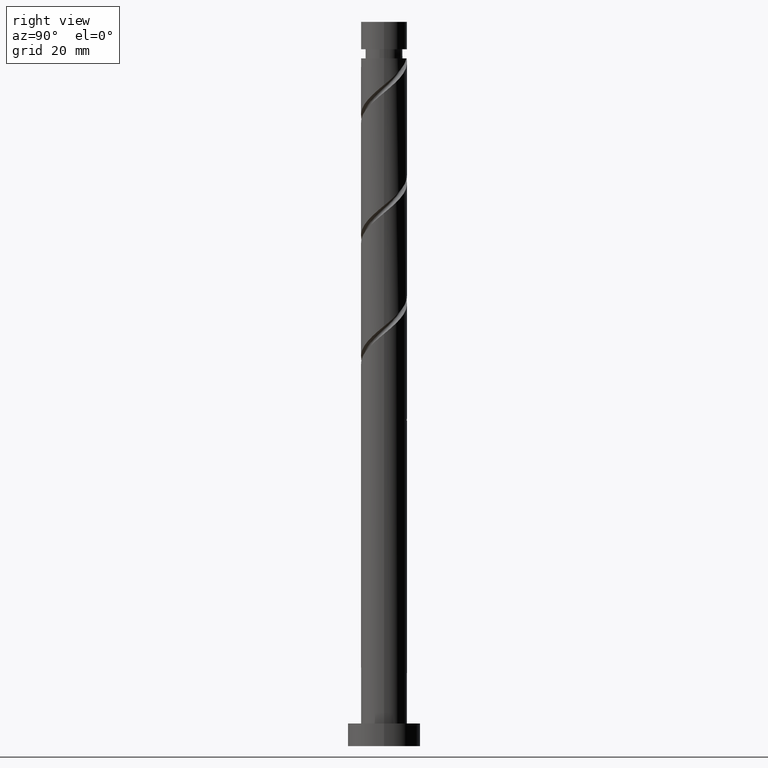
[diagram: clean part render]
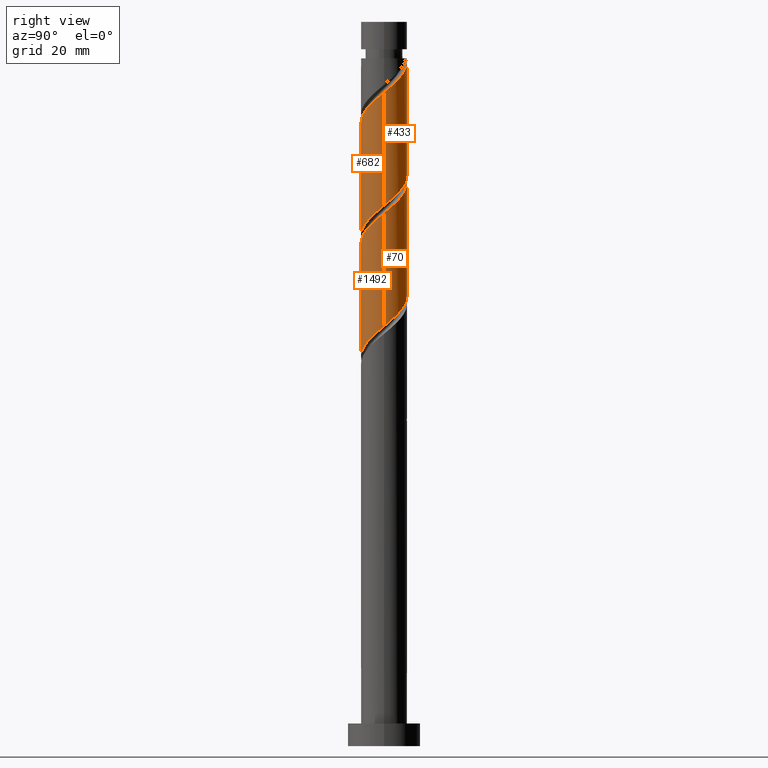
[diagram: same view with one multi-face feature highlighted, each face labeled with its STEP entity id]
A machine part, right view. The highlighted faces form ONE feature: a constant-radius fillet chain: 4 tangent blend faces with common blend radius 5.1 mm. The faces share edges in the B-rep.
Their STEP definitions:
[1] entity #1492 (Cylinder):
#2 = CARTESIAN_POINT ( 'NONE',  ( -1.164927662982270906, -5.019026539621376237, 110.1051444012704650 ) ) ;
#14 = CARTESIAN_POINT ( 'NONE',  ( -3.555900236163437977, -3.655895719307762359, 82.83241712854317029 ) ) ;
#15 = CARTESIAN_POINT ( 'NONE',  ( -5.100000000000008527, -3.873816562205578702E-15, 104.4072050734847323 ) ) ;
#44 = LINE ( 'NONE', #949, #942 ) ;
#133 = CARTESIAN_POINT ( 'NONE',  ( -1.014887185848754259, -4.997999999999999332, 85.25665955278559238 ) ) ;
#145 = EDGE_CURVE ( 'NONE', #1275, #1457, #539, .T. ) ;
#147 =( BOUNDED_CURVE ( )  B_SPLINE_CURVE ( 2, ( #15, #263, #377, #1274, #1142, #1162, #1655, #1017, #369, #497, #1152, #2, #1535, #510, #622, #1010, #361, #889, #1291, #1023, #881, #1299, #1539, #1402, #517 ),
 .UNSPECIFIED., .F., .T. ) 
 B_SPLINE_CURVE_WITH_KNOTS ( ( 3, 2, 2, 2, 2, 2, 2, 2, 2, 2, 2, 2, 3 ),
 ( 0.3045252162417514397, 0.3068181818181817677, 0.3181818181818182323, 0.3295454545454545858, 0.3409090909090909394, 0.3522727272727272929, 0.3636363636363636465, 0.3750000000000000000, 0.3863636363636363535, 0.3977272727272727071, 0.4090909090909090606, 0.4204545454545454142, 0.4295252162417513286 ),
 .UNSPECIFIED. ) 
 CURVE ( )  GEOMETRIC_REPRESENTATION_ITEM ( )  RATIONAL_B_SPLINE_CURVE ( ( 0.9061101570135587924, 0.9072237824201410117, 0.9090909090909183865, 0.8998376744372206248, 0.9090909090909183865, 0.8998376744372206248, 0.9090909090909183865, 0.8998376744372206248, 0.9090909090909183865, 0.8998376744372206248, 0.9090909090909183865, 0.8998376744372206248, 0.9090909090909183865, 0.8998376744372206248, 0.9090909090909183865, 0.8998376744372206248, 0.9090909090909183865, 0.8998376744372206248, 0.9090909090909183865, 0.8998376744372206248, 0.9090909090909183865, 0.8998376744372206248, 0.9090909090909183865, 0.9017048011079981107, 0.9061101570135587924 ) ) 
 REPRESENTATION_ITEM ( '' )  );
#244 = CARTESIAN_POINT ( 'NONE',  ( -4.081538685709033665, -3.144634449735859150, 82.22635652248253280 ) ) ;
#263 = CARTESIAN_POINT ( 'NONE',  ( -5.100000000000008527, -0.1467551852715037464, 104.5293030782029291 ) ) ;
#268 = CARTESIAN_POINT ( 'NONE',  ( 5.100000000000000533, -6.236994233358057448E-15, 92.77278069875313804 ) ) ;
#361 = CARTESIAN_POINT ( 'NONE',  ( 2.381876442926737170, -4.509619120350493837, 113.1354474315734535 ) ) ;
#368 = CARTESIAN_POINT ( 'NONE',  ( -5.100000000000000533, 5.190016784113299497E-15, 79.43944736541979523 ) ) ;
#369 = CARTESIAN_POINT ( 'NONE',  ( -3.112626605226008092, -4.039994506981326339, 108.2869625830886093 ) ) ;
#376 = CARTESIAN_POINT ( 'NONE',  ( 1.164927662982269574, -5.019026539621368244, 87.07484137096736276 ) ) ;
#377 = CARTESIAN_POINT ( 'NONE',  ( -5.091561072240604169, -0.2932675359534160919, 104.6505989467249833 ) ) ;
#382 = CARTESIAN_POINT ( 'NONE',  ( -4.802153594329291231, -1.867352329335635774, 81.01423531036135728 ) ) ;
#384 = EDGE_CURVE ( 'NONE', #1275, #1405, #147, .T. ) ;
#387 = CARTESIAN_POINT ( 'NONE',  ( -2.381876442926734949, -4.509619120350484067, 84.04453834066436002 ) ) ;
#397 = CARTESIAN_POINT ( 'NONE',  ( -5.100000000000001421, -0.5840975296641236492, 79.92540731839109469 ) ) ;
#406 = DIRECTION ( 'NONE',  ( -0.000000000000000000, -0.000000000000000000, -1.000000000000000000 ) ) ;
#436 = DIRECTION ( 'NONE',  ( -1.000000000000000000, 0.000000000000000000, 0.000000000000000000 ) ) ;
#497 = CARTESIAN_POINT ( 'NONE',  ( -2.531763087263172007, -4.487522650124088130, 108.8930231891492184 ) ) ;
#504 = CARTESIAN_POINT ( 'NONE',  ( 0.4343221952601943325, -5.081472643900030839, 86.46878076490679632 ) ) ;
#510 = CARTESIAN_POINT ( 'NONE',  ( 0.2962832724618764124, -5.143918748178701428, 111.3172656133916547 ) ) ;
#516 = CARTESIAN_POINT ( 'NONE',  ( 5.100000000000000533, -6.236994233358057448E-15, 92.77278069875313804 ) ) ;
#517 = CARTESIAN_POINT ( 'NONE',  ( 5.100000000000009415, 3.619550610246139694E-15, 117.7405384068180467 ) ) ;
#534 = FACE_OUTER_BOUND ( 'NONE', #1335, .T. ) ;
#539 = LINE ( 'NONE', #558, #1350 ) ;
#558 = CARTESIAN_POINT ( 'NONE',  ( -5.100000000000001421, 0.000000000000000000, 160.0000000000000000 ) ) ;
#622 = CARTESIAN_POINT ( 'NONE',  ( 1.014887185848753814, -4.998000000000006438, 111.9233262194522354 ) ) ;
#632 = CARTESIAN_POINT ( 'NONE',  ( -4.967940086286691148, -1.153070379060094242, 80.40817470430073399 ) ) ;
#643 = CARTESIAN_POINT ( 'NONE',  ( 5.100000000000009415, 3.619550610246139694E-15, 117.7405384068180467 ) ) ;
#665 = DIRECTION ( 'NONE',  ( -0.000000000000000000, -0.000000000000000000, -1.000000000000000000 ) ) ;
#756 = CARTESIAN_POINT ( 'NONE',  ( -4.441846140019165112, -2.505993389535748683, 81.62029591642196635 ) ) ;
#762 = CARTESIAN_POINT ( 'NONE',  ( -1.733491099235630495, -4.852081251821307006, 84.65059894672499752 ) ) ;
#764 = ORIENTED_EDGE ( 'NONE', *, *, #1216, .F. ) ;
#768 = CARTESIAN_POINT ( 'NONE',  ( -0.2962832724618781888, -5.143918748178693434, 85.86272015884617304 ) ) ;
#807 = CARTESIAN_POINT ( 'NONE',  ( 0.000000000000000000, 0.000000000000000000, 160.0000000000000000 ) ) ;
#880 = CARTESIAN_POINT ( 'NONE',  ( 1.848345375122716794, -4.753274594872724634, 87.68090197702798605 ) ) ;
#881 = CARTESIAN_POINT ( 'NONE',  ( 4.441846140019168665, -2.505993389535753124, 115.5596898558158898 ) ) ;
#889 = CARTESIAN_POINT ( 'NONE',  ( 3.030261786617845399, -4.167156988879670010, 113.7415080376340626 ) ) ;
#900 = CARTESIAN_POINT ( 'NONE',  ( -5.100000000000000533, 5.190016784113299497E-15, 79.43944736541979523 ) ) ;
#906 = CARTESIAN_POINT ( 'NONE',  ( 5.091561072240597063, -0.2932675359534175907, 92.52938682551285865 ) ) ;
#942 = VECTOR ( 'NONE', #665, 1000.000000000000000 ) ;
#949 = CARTESIAN_POINT ( 'NONE',  ( 5.100000000000001421, 6.245698675651502811E-16, 160.0000000000000000 ) ) ;
#1009 = CARTESIAN_POINT ( 'NONE',  ( -3.030261786617840514, -4.167156988879664681, 83.43847773460376516 ) ) ;
#1010 = CARTESIAN_POINT ( 'NONE',  ( 1.733491099235631161, -4.852081251821315000, 112.5293868255128586 ) ) ;
#1014 =( BOUNDED_CURVE ( )  B_SPLINE_CURVE ( 2, ( #268, #1022, #906, #1534, #1285, #1016, #1290, #1401, #1548, #1141, #880, #376, #504, #768, #133, #762, #387, #1009, #14, #244, #756, #382, #632, #397, #900 ),
 .UNSPECIFIED., .F., .T. ) 
 B_SPLINE_CURVE_WITH_KNOTS ( ( 3, 2, 2, 2, 2, 2, 2, 2, 2, 2, 2, 2, 3 ),
 ( 0.8045252162417513286, 0.8068181818181817677, 0.8181818181818182323, 0.8295454545454545858, 0.8409090909090909394, 0.8522727272727272929, 0.8636363636363636465, 0.8750000000000000000, 0.8863636363636363535, 0.8977272727272727071, 0.9090909090909090606, 0.9204545454545454142, 0.9295252162417513286 ),
 .UNSPECIFIED. ) 
 CURVE ( )  GEOMETRIC_REPRESENTATION_ITEM ( )  RATIONAL_B_SPLINE_CURVE ( ( 0.9061101570135526861, 0.9072237824201347944, 0.9090909090909122803, 0.8998376744372147407, 0.9090909090909122803, 0.8998376744372147407, 0.9090909090909122803, 0.8998376744372147407, 0.9090909090909122803, 0.8998376744372147407, 0.9090909090909122803, 0.8998376744372147407, 0.9090909090909122803, 0.8998376744372147407, 0.9090909090909122803, 0.8998376744372147407, 0.9090909090909122803, 0.8998376744372147407, 0.9090909090909122803, 0.8998376744372147407, 0.9090909090909122803, 0.8998376744372147407, 0.9090909090909122803, 0.9017048011079922265, 0.9061101570135526861 ) ) 
 REPRESENTATION_ITEM ( '' )  );
#1016 = CARTESIAN_POINT ( 'NONE',  ( 4.555992555365309116, -2.406369817974963077, 90.71120500733105985 ) ) ;
#1017 = CARTESIAN_POINT ( 'NONE',  ( -3.693490123188846397, -3.592466363838566323, 107.6809019770279860 ) ) ;
#1022 = CARTESIAN_POINT ( 'NONE',  ( 5.100000000000000533, -0.1467551852714985838, 92.65068269403492707 ) ) ;
#1023 = CARTESIAN_POINT ( 'NONE',  ( 4.081538685709038106, -3.144634449735867143, 114.9536292497552665 ) ) ;
#1062 = DIRECTION ( 'NONE',  ( -0.000000000000000000, -0.000000000000000000, -1.000000000000000000 ) ) ;
#1141 = CARTESIAN_POINT ( 'NONE',  ( 2.531763087263166234, -4.487522650124082801, 88.28696258308862355 ) ) ;
#1142 = CARTESIAN_POINT ( 'NONE',  ( -4.802694060801214526, -1.715846659333175817, 105.8627201588461730 ) ) ;
#1152 = CARTESIAN_POINT ( 'NONE',  ( -1.848345375122721679, -4.753274594872729963, 109.4990837952098275 ) ) ;
#1156 = CARTESIAN_POINT ( 'NONE',  ( -5.100000000000008527, -3.873816562205578702E-15, 104.4072050734847181 ) ) ;
#1162 = CARTESIAN_POINT ( 'NONE',  ( -4.555992555365317109, -2.406369817974965297, 106.4687807649067821 ) ) ;
#1216 = EDGE_CURVE ( 'NONE', #1410, #1457, #1014, .T. ) ;
#1274 = CARTESIAN_POINT ( 'NONE',  ( -5.049395566237111943, -1.025323500691386780, 105.2566595527856066 ) ) ;
#1275 = VERTEX_POINT ( 'NONE', #1156 ) ;
#1285 = CARTESIAN_POINT ( 'NONE',  ( 4.802694060801208309, -1.715846659333175150, 91.31726561339164050 ) ) ;
#1290 = CARTESIAN_POINT ( 'NONE',  ( 4.124741339277075980, -2.999418090906762036, 90.10514440127042235 ) ) ;
#1291 = CARTESIAN_POINT ( 'NONE',  ( 3.555900236163441086, -3.655895719307769021, 114.3475686436946432 ) ) ;
#1299 = CARTESIAN_POINT ( 'NONE',  ( 4.802153594329301001, -1.867352329335637995, 116.1657504618764847 ) ) ;
#1323 = CYLINDRICAL_SURFACE ( 'NONE', #1623, 5.100000000000001421 ) ;
#1335 = EDGE_LOOP ( 'NONE', ( #1524, #1503, #1597, #764 ) ) ;
#1350 = VECTOR ( 'NONE', #1062, 1000.000000000000000 ) ;
#1401 = CARTESIAN_POINT ( 'NONE',  ( 3.693490123188841956, -3.592466363838561882, 89.49908379520984170 ) ) ;
#1402 = CARTESIAN_POINT ( 'NONE',  ( 5.100000000000010303, -0.5840975296641256476, 117.2545784538467331 ) ) ;
#1405 = VERTEX_POINT ( 'NONE', #643 ) ;
#1410 = VERTEX_POINT ( 'NONE', #516 ) ;
#1457 = VERTEX_POINT ( 'NONE', #368 ) ;
#1492 = ADVANCED_FACE ( 'NONE', ( #534 ), #1323, .T. ) ;
#1503 = ORIENTED_EDGE ( 'NONE', *, *, #384, .F. ) ;
#1517 = EDGE_CURVE ( 'NONE', #1405, #1410, #44, .T. ) ;
#1524 = ORIENTED_EDGE ( 'NONE', *, *, #1517, .F. ) ;
#1534 = CARTESIAN_POINT ( 'NONE',  ( 5.049395566237103949, -1.025323500691387002, 91.92332621945226379 ) ) ;
#1535 = CARTESIAN_POINT ( 'NONE',  ( -0.4343221952601974412, -5.081472643900038832, 110.7112050073310456 ) ) ;
#1539 = CARTESIAN_POINT ( 'NONE',  ( 4.967940086286699142, -1.153070379060096906, 116.7718110679370938 ) ) ;
#1548 = CARTESIAN_POINT ( 'NONE',  ( 3.112626605226002319, -4.039994506981322786, 88.89302318914923262 ) ) ;
#1597 = ORIENTED_EDGE ( 'NONE', *, *, #145, .T. ) ;
#1623 = AXIS2_PLACEMENT_3D ( 'NONE', #807, #406, #436 ) ;
#1655 = CARTESIAN_POINT ( 'NONE',  ( -4.124741339277082197, -2.999418090906765588, 107.0748413709674054 ) ) ;
[2] entity #70 (Cylinder):
#39 = CARTESIAN_POINT ( 'NONE',  ( 0.000000000000000000, 0.000000000000000000, 160.0000000000000000 ) ) ;
#44 = LINE ( 'NONE', #949, #942 ) ;
#49 = CYLINDRICAL_SURFACE ( 'NONE', #117, 5.100000000000001421 ) ;
#70 = ADVANCED_FACE ( 'NONE', ( #1200 ), #49, .T. ) ;
#81 = ORIENTED_EDGE ( 'NONE', *, *, #393, .F. ) ;
#99 = CARTESIAN_POINT ( 'NONE',  ( 5.091561072240605057, 0.2932675359534154813, 117.9839322800582977 ) ) ;
#117 = AXIS2_PLACEMENT_3D ( 'NONE', #39, #936, #662 ) ;
#149 = CARTESIAN_POINT ( 'NONE',  ( -1.848345375122716794, 4.753274594872724634, 101.0142353103613431 ) ) ;
#176 = CARTESIAN_POINT ( 'NONE',  ( -4.124741339277075092, 2.999418090906762480, 103.4384777346037225 ) ) ;
#212 = CARTESIAN_POINT ( 'NONE',  ( -2.381876442926737614, 4.509619120350492061, 126.4687807649067821 ) ) ;
#245 = LINE ( 'NONE', #757, #1254 ) ;
#249 = VERTEX_POINT ( 'NONE', #1224 ) ;
#272 = ORIENTED_EDGE ( 'NONE', *, *, #864, .F. ) ;
#288 = CARTESIAN_POINT ( 'NONE',  ( -0.4343221952601959979, 5.081472643900030839, 99.80211409824012492 ) ) ;
#300 = CARTESIAN_POINT ( 'NONE',  ( 2.381876442926734949, 4.509619120350484067, 97.37787167399770283 ) ) ;
#331 = CARTESIAN_POINT ( 'NONE',  ( -0.2962832724618756353, 5.143918748178701428, 124.6505989467249691 ) ) ;
#332 = EDGE_CURVE ( 'NONE', #1405, #249, #775, .T. ) ;
#341 = CARTESIAN_POINT ( 'NONE',  ( -4.802153594329298336, 1.867352329335639771, 129.4990837952097991 ) ) ;
#351 = CARTESIAN_POINT ( 'NONE',  ( -5.100000000000011191, 0.5840975296641244263, 130.5879117871800759 ) ) ;
#371 =( BOUNDED_CURVE ( )  B_SPLINE_CURVE ( 2, ( #1134, #894, #1643, #1451, #1306, #1072, #176, #1460, #542, #1433, #149, #670, #288, #1194, #1585, #1046, #300, #533, #526, #1176, #914, #1442, #1554, #785, #421 ),
 .UNSPECIFIED., .F., .T. ) 
 B_SPLINE_CURVE_WITH_KNOTS ( ( 3, 2, 2, 2, 2, 2, 2, 2, 2, 2, 2, 2, 3 ),
 ( 0.6795252162417513286, 0.6818181818181817677, 0.6931818181818182323, 0.7045454545454545858, 0.7159090909090909394, 0.7272727272727272929, 0.7386363636363636465, 0.7500000000000000000, 0.7613636363636363535, 0.7727272727272727071, 0.7840909090909090606, 0.7954545454545454142, 0.8045252162417513286 ),
 .UNSPECIFIED. ) 
 CURVE ( )  GEOMETRIC_REPRESENTATION_ITEM ( )  RATIONAL_B_SPLINE_CURVE ( ( 0.9061101570135526861, 0.9072237824201347944, 0.9090909090909122803, 0.8998376744372147407, 0.9090909090909122803, 0.8998376744372147407, 0.9090909090909122803, 0.8998376744372147407, 0.9090909090909122803, 0.8998376744372147407, 0.9090909090909122803, 0.8998376744372147407, 0.9090909090909122803, 0.8998376744372147407, 0.9090909090909122803, 0.8998376744372147407, 0.9090909090909122803, 0.8998376744372147407, 0.9090909090909122803, 0.8998376744372147407, 0.9090909090909122803, 0.8998376744372147407, 0.9090909090909122803, 0.9017048011079922265, 0.9061101570135526861 ) ) 
 REPRESENTATION_ITEM ( '' )  );
#393 = EDGE_CURVE ( 'NONE', #249, #519, #245, .T. ) ;
#410 = ORIENTED_EDGE ( 'NONE', *, *, #332, .F. ) ;
#421 = CARTESIAN_POINT ( 'NONE',  ( 5.100000000000000533, -6.236994233358057448E-15, 92.77278069875313804 ) ) ;
#447 = CARTESIAN_POINT ( 'NONE',  ( 1.848345375122719902, 4.753274594872729963, 122.8324171285431419 ) ) ;
#460 = CARTESIAN_POINT ( 'NONE',  ( 5.100000000000009415, 3.619550610246139694E-15, 117.7405384068180467 ) ) ;
#470 = CARTESIAN_POINT ( 'NONE',  ( -4.081538685709038994, 3.144634449735867143, 128.2869625830886378 ) ) ;
#516 = CARTESIAN_POINT ( 'NONE',  ( 5.100000000000000533, -6.236994233358057448E-15, 92.77278069875313804 ) ) ;
#519 = VERTEX_POINT ( 'NONE', #797 ) ;
#526 = CARTESIAN_POINT ( 'NONE',  ( 3.555900236163436201, 3.655895719307762359, 96.16575046187647047 ) ) ;
#533 = CARTESIAN_POINT ( 'NONE',  ( 3.030261786617840958, 4.167156988879663793, 96.77181106793710796 ) ) ;
#542 = CARTESIAN_POINT ( 'NONE',  ( -3.112626605226002763, 4.039994506981321898, 102.2263565224825470 ) ) ;
#568 = CARTESIAN_POINT ( 'NONE',  ( 3.112626605226007648, 4.039994506981327227, 121.6202959164219379 ) ) ;
#607 = CARTESIAN_POINT ( 'NONE',  ( 3.693490123188849505, 3.592466363838564547, 121.0142353103613573 ) ) ;
#643 = CARTESIAN_POINT ( 'NONE',  ( 5.100000000000009415, 3.619550610246139694E-15, 117.7405384068180467 ) ) ;
#662 = DIRECTION ( 'NONE',  ( -1.000000000000000000, 0.000000000000000000, 0.000000000000000000 ) ) ;
#665 = DIRECTION ( 'NONE',  ( -0.000000000000000000, -0.000000000000000000, -1.000000000000000000 ) ) ;
#670 = CARTESIAN_POINT ( 'NONE',  ( -1.164927662982268908, 5.019026539621368244, 100.4081747043007482 ) ) ;
#701 = EDGE_LOOP ( 'NONE', ( #410, #1282, #272, #81 ) ) ;
#721 = CARTESIAN_POINT ( 'NONE',  ( -4.441846140019169553, 2.505993389535752680, 128.8930231891492326 ) ) ;
#757 = CARTESIAN_POINT ( 'NONE',  ( -5.100000000000001421, 0.000000000000000000, 160.0000000000000000 ) ) ;
#775 =( BOUNDED_CURVE ( )  B_SPLINE_CURVE ( 2, ( #460, #1105, #99, #1355, #984, #1502, #970, #607, #568, #1128, #447, #1479, #1637, #331, #851, #1367, #212, #1137, #829, #470, #721, #341, #1388, #351, #1265 ),
 .UNSPECIFIED., .F., .T. ) 
 B_SPLINE_CURVE_WITH_KNOTS ( ( 3, 2, 2, 2, 2, 2, 2, 2, 2, 2, 2, 2, 3 ),
 ( 0.4295252162417513286, 0.4318181818181817677, 0.4431818181818182323, 0.4545454545454545858, 0.4659090909090909394, 0.4772727272727272929, 0.4886363636363636465, 0.5000000000000000000, 0.5113636363636363535, 0.5227272727272727071, 0.5340909090909091717, 0.5454545454545454142, 0.5545252162417514397 ),
 .UNSPECIFIED. ) 
 CURVE ( )  GEOMETRIC_REPRESENTATION_ITEM ( )  RATIONAL_B_SPLINE_CURVE ( ( 0.9061101570135587924, 0.9072237824201409007, 0.9090909090909183865, 0.8998376744372206248, 0.9090909090909183865, 0.8998376744372206248, 0.9090909090909183865, 0.8998376744372206248, 0.9090909090909183865, 0.8998376744372206248, 0.9090909090909183865, 0.8998376744372206248, 0.9090909090909183865, 0.8998376744372206248, 0.9090909090909183865, 0.8998376744372206248, 0.9090909090909183865, 0.8998376744372206248, 0.9090909090909183865, 0.8998376744372206248, 0.9090909090909183865, 0.8998376744372206248, 0.9090909090909183865, 0.9017048011079979997, 0.9061101570135587924 ) ) 
 REPRESENTATION_ITEM ( '' )  );
#785 = CARTESIAN_POINT ( 'NONE',  ( 5.100000000000001421, 0.5840975296641215397, 93.25874065172443750 ) ) ;
#797 = CARTESIAN_POINT ( 'NONE',  ( -5.100000000000000533, 5.190016784113299497E-15, 106.1061140320864808 ) ) ;
#829 = CARTESIAN_POINT ( 'NONE',  ( -3.555900236163441086, 3.655895719307769021, 127.6809019770280287 ) ) ;
#851 = CARTESIAN_POINT ( 'NONE',  ( -1.014887185848752926, 4.998000000000006438, 125.2566595527855924 ) ) ;
#864 = EDGE_CURVE ( 'NONE', #519, #1410, #371, .T. ) ;
#894 = CARTESIAN_POINT ( 'NONE',  ( -5.100000000000000533, 0.1467551852714976679, 105.9840160273682841 ) ) ;
#896 = DIRECTION ( 'NONE',  ( -0.000000000000000000, -0.000000000000000000, -1.000000000000000000 ) ) ;
#914 = CARTESIAN_POINT ( 'NONE',  ( 4.441846140019163336, 2.505993389535748683, 94.95362924975525232 ) ) ;
#936 = DIRECTION ( 'NONE',  ( -0.000000000000000000, -0.000000000000000000, -1.000000000000000000 ) ) ;
#942 = VECTOR ( 'NONE', #665, 1000.000000000000000 ) ;
#949 = CARTESIAN_POINT ( 'NONE',  ( 5.100000000000001421, 6.245698675651502811E-16, 160.0000000000000000 ) ) ;
#970 = CARTESIAN_POINT ( 'NONE',  ( 4.124741339277083085, 2.999418090906763812, 120.4081747043007056 ) ) ;
#984 = CARTESIAN_POINT ( 'NONE',  ( 4.802694060801214526, 1.715846659333175150, 119.1960534921795016 ) ) ;
#1046 = CARTESIAN_POINT ( 'NONE',  ( 1.733491099235631161, 4.852081251821307006, 97.98393228005831190 ) ) ;
#1072 = CARTESIAN_POINT ( 'NONE',  ( -4.555992555365309116, 2.406369817974963077, 104.0445383406643458 ) ) ;
#1105 = CARTESIAN_POINT ( 'NONE',  ( 5.100000000000008527, 0.1467551852714962246, 117.8626364115362435 ) ) ;
#1128 = CARTESIAN_POINT ( 'NONE',  ( 2.531763087263169343, 4.487522650124088130, 122.2263565224825470 ) ) ;
#1134 = CARTESIAN_POINT ( 'NONE',  ( -5.100000000000000533, 5.190016784113299497E-15, 106.1061140320864808 ) ) ;
#1137 = CARTESIAN_POINT ( 'NONE',  ( -3.030261786617844511, 4.167156988879670898, 127.0748413709673912 ) ) ;
#1176 = CARTESIAN_POINT ( 'NONE',  ( 4.081538685709032777, 3.144634449735860926, 95.55968985581587560 ) ) ;
#1194 = CARTESIAN_POINT ( 'NONE',  ( 0.2962832724618768565, 5.143918748178693434, 99.19605349217950163 ) ) ;
#1200 = FACE_OUTER_BOUND ( 'NONE', #701, .T. ) ;
#1224 = CARTESIAN_POINT ( 'NONE',  ( -5.100000000000008527, 3.185802809844742417E-15, 131.0738717401513611 ) ) ;
#1254 = VECTOR ( 'NONE', #896, 1000.000000000000000 ) ;
#1265 = CARTESIAN_POINT ( 'NONE',  ( -5.100000000000008527, 3.185802809844742417E-15, 131.0738717401513611 ) ) ;
#1282 = ORIENTED_EDGE ( 'NONE', *, *, #1517, .T. ) ;
#1306 = CARTESIAN_POINT ( 'NONE',  ( -4.802694060801208309, 1.715846659333174706, 104.6505989467249691 ) ) ;
#1355 = CARTESIAN_POINT ( 'NONE',  ( 5.049395566237111943, 1.025323500691386114, 118.5899928861189352 ) ) ;
#1367 = CARTESIAN_POINT ( 'NONE',  ( -1.733491099235631827, 4.852081251821315000, 125.8627201588462015 ) ) ;
#1388 = CARTESIAN_POINT ( 'NONE',  ( -4.967940086286698254, 1.153070379060097350, 130.1051444012704223 ) ) ;
#1405 = VERTEX_POINT ( 'NONE', #643 ) ;
#1410 = VERTEX_POINT ( 'NONE', #516 ) ;
#1433 = CARTESIAN_POINT ( 'NONE',  ( -2.531763087263166678, 4.487522650124081913, 101.6202959164219806 ) ) ;
#1442 = CARTESIAN_POINT ( 'NONE',  ( 4.802153594329293007, 1.867352329335633110, 94.34756864369465745 ) ) ;
#1451 = CARTESIAN_POINT ( 'NONE',  ( -5.049395566237103949, 1.025323500691386336, 105.2566595527856208 ) ) ;
#1460 = CARTESIAN_POINT ( 'NONE',  ( -3.693490123188840624, 3.592466363838562327, 102.8324171285431561 ) ) ;
#1479 = CARTESIAN_POINT ( 'NONE',  ( 1.164927662982272016, 5.019026539621375349, 123.4384777346037652 ) ) ;
#1502 = CARTESIAN_POINT ( 'NONE',  ( 4.555992555365317109, 2.406369817974964853, 119.8021140982401249 ) ) ;
#1517 = EDGE_CURVE ( 'NONE', #1405, #1410, #44, .T. ) ;
#1554 = CARTESIAN_POINT ( 'NONE',  ( 4.967940086286692036, 1.153070379060092687, 93.74150803763406259 ) ) ;
#1585 = CARTESIAN_POINT ( 'NONE',  ( 1.014887185848754703, 4.997999999999999332, 98.58999288611893519 ) ) ;
#1637 = CARTESIAN_POINT ( 'NONE',  ( 0.4343221952601978297, 5.081472643900038832, 124.0445383406643600 ) ) ;
#1643 = CARTESIAN_POINT ( 'NONE',  ( -5.091561072240597063, 0.2932675359534169801, 105.8627201588462015 ) ) ;
[3] entity #682 (Cylinder):
#4 = CARTESIAN_POINT ( 'NONE',  ( -5.100000000000008527, -0.1467551852714980565, 131.1959697448695579 ) ) ;
#6 = CARTESIAN_POINT ( 'NONE',  ( -4.967940086286691148, -1.153070379060094242, 107.0748413709674338 ) ) ;
#13 = CARTESIAN_POINT ( 'NONE',  ( 4.802694060801208309, -1.715846659333175150, 117.9839322800583261 ) ) ;
#27 = EDGE_CURVE ( 'NONE', #249, #780, #1272, .T. ) ;
#111 = CARTESIAN_POINT ( 'NONE',  ( -4.081538685709033665, -3.144634449735859150, 108.8930231891492042 ) ) ;
#113 = CARTESIAN_POINT ( 'NONE',  ( -1.164927662982270906, -5.019026539621376237, 136.7718110679371080 ) ) ;
#127 = CARTESIAN_POINT ( 'NONE',  ( 4.555992555365309116, -2.406369817974963077, 117.3778716739977028 ) ) ;
#146 = ORIENTED_EDGE ( 'NONE', *, *, #393, .T. ) ;
#168 = CARTESIAN_POINT ( 'NONE',  ( 0.2962832724618764124, -5.143918748178701428, 137.9839322800583261 ) ) ;
#213 = EDGE_LOOP ( 'NONE', ( #759, #1649, #146, #1659 ) ) ;
#243 = CARTESIAN_POINT ( 'NONE',  ( 5.099999999999999645, -6.236994233358057448E-15, 119.4394473654198094 ) ) ;
#245 = LINE ( 'NONE', #757, #1254 ) ;
#249 = VERTEX_POINT ( 'NONE', #1224 ) ;
#293 = CARTESIAN_POINT ( 'NONE',  ( 2.381876442926737170, -4.509619120350493837, 139.8021140982401107 ) ) ;
#298 = CARTESIAN_POINT ( 'NONE',  ( 5.100000000000012079, -0.5840975296641169878, 143.9212451205134471 ) ) ;
#314 = DIRECTION ( 'NONE',  ( -0.000000000000000000, -0.000000000000000000, -1.000000000000000000 ) ) ;
#367 = CARTESIAN_POINT ( 'NONE',  ( 5.091561072240597063, -0.2932675359534175907, 119.1960534921795016 ) ) ;
#381 = CARTESIAN_POINT ( 'NONE',  ( -5.100000000000000533, 5.190016784113299497E-15, 106.1061140320864808 ) ) ;
#385 = CARTESIAN_POINT ( 'NONE',  ( -4.124741339277082197, -2.999418090906765588, 133.7415080376340768 ) ) ;
#390 = CARTESIAN_POINT ( 'NONE',  ( -2.531763087263172007, -4.487522650124088130, 135.5596898558158898 ) ) ;
#393 = EDGE_CURVE ( 'NONE', #249, #519, #245, .T. ) ;
#400 = CARTESIAN_POINT ( 'NONE',  ( -3.112626605226008092, -4.039994506981326339, 134.9536292497552949 ) ) ;
#427 = CARTESIAN_POINT ( 'NONE',  ( 4.081538685709038106, -3.144634449735867143, 141.6202959164219521 ) ) ;
#503 = CARTESIAN_POINT ( 'NONE',  ( -3.030261786617840514, -4.167156988879664681, 110.1051444012704508 ) ) ;
#508 = CARTESIAN_POINT ( 'NONE',  ( -5.100000000000001421, -0.5840975296641236492, 106.5920739850577803 ) ) ;
#519 = VERTEX_POINT ( 'NONE', #797 ) ;
#546 = CARTESIAN_POINT ( 'NONE',  ( 4.441846140019168665, -2.505993389535753124, 142.2263565224825470 ) ) ;
#548 = CARTESIAN_POINT ( 'NONE',  ( 5.100000000000000533, -6.236994233358057448E-15, 119.4394473654197952 ) ) ;
#565 = FACE_OUTER_BOUND ( 'NONE', #213, .T. ) ;
#631 = CARTESIAN_POINT ( 'NONE',  ( 1.848345375122716794, -4.753274594872724634, 114.3475686436946575 ) ) ;
#635 = CARTESIAN_POINT ( 'NONE',  ( -5.100000000000008527, 3.185802809844742417E-15, 131.0738717401513611 ) ) ;
#636 = CARTESIAN_POINT ( 'NONE',  ( -0.2962832724618781888, -5.143918748178693434, 112.5293868255128586 ) ) ;
#641 = CARTESIAN_POINT ( 'NONE',  ( 5.100000000000000533, -0.1467551852715056893, 119.3173493607015985 ) ) ;
#669 = CARTESIAN_POINT ( 'NONE',  ( 1.014887185848753814, -4.998000000000006438, 138.5899928861188926 ) ) ;
#676 = CARTESIAN_POINT ( 'NONE',  ( 3.030261786617845399, -4.167156988879670010, 140.4081747043007624 ) ) ;
#682 = ADVANCED_FACE ( 'NONE', ( #565 ), #743, .T. ) ;
#743 = CYLINDRICAL_SURFACE ( 'NONE', #1541, 5.100000000000001421 ) ;
#750 = CARTESIAN_POINT ( 'NONE',  ( 2.531763087263166234, -4.487522650124082801, 114.9536292497552665 ) ) ;
#757 = CARTESIAN_POINT ( 'NONE',  ( -5.100000000000001421, 0.000000000000000000, 160.0000000000000000 ) ) ;
#759 = ORIENTED_EDGE ( 'NONE', *, *, #1612, .F. ) ;
#767 = CARTESIAN_POINT ( 'NONE',  ( 3.693490123188841956, -3.592466363838561882, 116.1657504618764847 ) ) ;
#780 = VERTEX_POINT ( 'NONE', #1364 ) ;
#796 = DIRECTION ( 'NONE',  ( -0.000000000000000000, -0.000000000000000000, -1.000000000000000000 ) ) ;
#797 = CARTESIAN_POINT ( 'NONE',  ( -5.100000000000000533, 5.190016784113299497E-15, 106.1061140320864808 ) ) ;
#802 = CARTESIAN_POINT ( 'NONE',  ( 4.802153594329301001, -1.867352329335637995, 142.8324171285431987 ) ) ;
#819 = CARTESIAN_POINT ( 'NONE',  ( 3.555900236163441086, -3.655895719307769021, 141.0142353103612720 ) ) ;
#834 = DIRECTION ( 'NONE',  ( -1.000000000000000000, 0.000000000000000000, 0.000000000000000000 ) ) ;
#838 = EDGE_CURVE ( 'NONE', #903, #519, #1180, .T. ) ;
#896 = DIRECTION ( 'NONE',  ( -0.000000000000000000, -0.000000000000000000, -1.000000000000000000 ) ) ;
#897 = CARTESIAN_POINT ( 'NONE',  ( -3.693490123188846397, -3.592466363838566323, 134.3475686436946717 ) ) ;
#903 = VERTEX_POINT ( 'NONE', #548 ) ;
#909 = CARTESIAN_POINT ( 'NONE',  ( -1.848345375122721679, -4.753274594872729963, 136.1657504618764563 ) ) ;
#929 = CARTESIAN_POINT ( 'NONE',  ( 5.100000000000009415, 3.619550610246139694E-15, 144.4072050734847039 ) ) ;
#933 = LINE ( 'NONE', #1187, #1570 ) ;
#1025 = CARTESIAN_POINT ( 'NONE',  ( -5.091561072240604169, -0.2932675359534160919, 131.3172656133916405 ) ) ;
#1030 = CARTESIAN_POINT ( 'NONE',  ( 1.164927662982269574, -5.019026539621368244, 113.7415080376340626 ) ) ;
#1041 = CARTESIAN_POINT ( 'NONE',  ( -5.049395566237111943, -1.025323500691386780, 131.9233262194522354 ) ) ;
#1145 = CARTESIAN_POINT ( 'NONE',  ( -4.802694060801214526, -1.715846659333175817, 132.5293868255128302 ) ) ;
#1150 = CARTESIAN_POINT ( 'NONE',  ( -1.733491099235630495, -4.852081251821307006, 111.3172656133916547 ) ) ;
#1155 = CARTESIAN_POINT ( 'NONE',  ( -4.802153594329291231, -1.867352329335635774, 107.6809019770280003 ) ) ;
#1180 =( BOUNDED_CURVE ( )  B_SPLINE_CURVE ( 2, ( #243, #641, #367, #1284, #13, #127, #1394, #767, #1289, #750, #631, #1030, #1296, #636, #1421, #1150, #1663, #503, #1271, #111, #1547, #1155, #6, #508, #381 ),
 .UNSPECIFIED., .F., .T. ) 
 B_SPLINE_CURVE_WITH_KNOTS ( ( 3, 2, 2, 2, 2, 2, 2, 2, 2, 2, 2, 2, 3 ),
 ( 0.5545252162417514397, 0.5568181818181817677, 0.5681818181818182323, 0.5795454545454545858, 0.5909090909090909394, 0.6022727272727272929, 0.6136363636363636465, 0.6250000000000000000, 0.6363636363636363535, 0.6477272727272727071, 0.6590909090909090606, 0.6704545454545454142, 0.6795252162417513286 ),
 .UNSPECIFIED. ) 
 CURVE ( )  GEOMETRIC_REPRESENTATION_ITEM ( )  RATIONAL_B_SPLINE_CURVE ( ( 0.9061101570135527972, 0.9072237824201349055, 0.9090909090909122803, 0.8998376744372147407, 0.9090909090909122803, 0.8998376744372147407, 0.9090909090909122803, 0.8998376744372147407, 0.9090909090909122803, 0.8998376744372147407, 0.9090909090909122803, 0.8998376744372147407, 0.9090909090909122803, 0.8998376744372147407, 0.9090909090909122803, 0.8998376744372147407, 0.9090909090909122803, 0.8998376744372147407, 0.9090909090909122803, 0.8998376744372147407, 0.9090909090909122803, 0.8998376744372147407, 0.9090909090909122803, 0.9017048011079922265, 0.9061101570135526861 ) ) 
 REPRESENTATION_ITEM ( '' )  );
#1187 = CARTESIAN_POINT ( 'NONE',  ( 5.100000000000001421, 6.245698675651502811E-16, 160.0000000000000000 ) ) ;
#1224 = CARTESIAN_POINT ( 'NONE',  ( -5.100000000000008527, 3.185802809844742417E-15, 131.0738717401513611 ) ) ;
#1254 = VECTOR ( 'NONE', #896, 1000.000000000000000 ) ;
#1271 = CARTESIAN_POINT ( 'NONE',  ( -3.555900236163437977, -3.655895719307762359, 109.4990837952098133 ) ) ;
#1272 =( BOUNDED_CURVE ( )  B_SPLINE_CURVE ( 2, ( #635, #4, #1025, #1041, #1145, #1542, #385, #897, #400, #390, #909, #113, #1588, #168, #669, #1583, #293, #676, #819, #427, #546, #802, #1455, #298, #929 ),
 .UNSPECIFIED., .F., .T. ) 
 B_SPLINE_CURVE_WITH_KNOTS ( ( 3, 2, 2, 2, 2, 2, 2, 2, 2, 2, 2, 2, 3 ),
 ( 0.5545252162417514397, 0.5568181818181818787, 0.5681818181818181213, 0.5795454545454545858, 0.5909090909090908283, 0.6022727272727272929, 0.6136363636363636465, 0.6250000000000000000, 0.6363636363636363535, 0.6477272727272727071, 0.6590909090909091717, 0.6704545454545454142, 0.6795252162417515507 ),
 .UNSPECIFIED. ) 
 CURVE ( )  GEOMETRIC_REPRESENTATION_ITEM ( )  RATIONAL_B_SPLINE_CURVE ( ( 0.9061101570135587924, 0.9072237824201410117, 0.9090909090909183865, 0.8998376744372206248, 0.9090909090909183865, 0.8998376744372206248, 0.9090909090909183865, 0.8998376744372206248, 0.9090909090909183865, 0.8998376744372206248, 0.9090909090909183865, 0.8998376744372206248, 0.9090909090909183865, 0.8998376744372206248, 0.9090909090909183865, 0.8998376744372206248, 0.9090909090909183865, 0.8998376744372206248, 0.9090909090909183865, 0.8998376744372206248, 0.9090909090909183865, 0.8998376744372206248, 0.9090909090909183865, 0.9017048011079979997, 0.9061101570135587924 ) ) 
 REPRESENTATION_ITEM ( '' )  );
#1284 = CARTESIAN_POINT ( 'NONE',  ( 5.049395566237103949, -1.025323500691387002, 118.5899928861189636 ) ) ;
#1289 = CARTESIAN_POINT ( 'NONE',  ( 3.112626605226002319, -4.039994506981322786, 115.5596898558158472 ) ) ;
#1296 = CARTESIAN_POINT ( 'NONE',  ( 0.4343221952601943325, -5.081472643900030839, 113.1354474315734677 ) ) ;
#1364 = CARTESIAN_POINT ( 'NONE',  ( 5.100000000000009415, 3.619550610246139694E-15, 144.4072050734847039 ) ) ;
#1394 = CARTESIAN_POINT ( 'NONE',  ( 4.124741339277075980, -2.999418090906762036, 116.7718110679370938 ) ) ;
#1421 = CARTESIAN_POINT ( 'NONE',  ( -1.014887185848754259, -4.997999999999999332, 111.9233262194522496 ) ) ;
#1455 = CARTESIAN_POINT ( 'NONE',  ( 4.967940086286699142, -1.153070379060096906, 143.4384777346037936 ) ) ;
#1486 = CARTESIAN_POINT ( 'NONE',  ( 0.000000000000000000, 0.000000000000000000, 160.0000000000000000 ) ) ;
#1541 = AXIS2_PLACEMENT_3D ( 'NONE', #1486, #314, #834 ) ;
#1542 = CARTESIAN_POINT ( 'NONE',  ( -4.555992555365317109, -2.406369817974965297, 133.1354474315734535 ) ) ;
#1547 = CARTESIAN_POINT ( 'NONE',  ( -4.441846140019165112, -2.505993389535748683, 108.2869625830886093 ) ) ;
#1570 = VECTOR ( 'NONE', #796, 1000.000000000000000 ) ;
#1583 = CARTESIAN_POINT ( 'NONE',  ( 1.733491099235631161, -4.852081251821315000, 139.1960534921795727 ) ) ;
#1588 = CARTESIAN_POINT ( 'NONE',  ( -0.4343221952601974412, -5.081472643900038832, 137.3778716739976460 ) ) ;
#1612 = EDGE_CURVE ( 'NONE', #780, #903, #933, .T. ) ;
#1649 = ORIENTED_EDGE ( 'NONE', *, *, #27, .F. ) ;
#1659 = ORIENTED_EDGE ( 'NONE', *, *, #838, .F. ) ;
#1663 = CARTESIAN_POINT ( 'NONE',  ( -2.381876442926734949, -4.509619120350484067, 110.7112050073310456 ) ) ;
[4] entity #433 (Cylinder):
#25 = CARTESIAN_POINT ( 'NONE',  ( 0.000000000000000000, 0.000000000000000000, 160.0000000000000000 ) ) ;
#36 = LINE ( 'NONE', #164, #170 ) ;
#60 = AXIS2_PLACEMENT_3D ( 'NONE', #25, #1549, #129 ) ;
#80 = CARTESIAN_POINT ( 'NONE',  ( 4.555992555365317109, 2.406369817974964853, 146.4687807649067679 ) ) ;
#128 = DIRECTION ( 'NONE',  ( -1.000000000000000000, 0.000000000000000000, 0.000000000000000000 ) ) ;
#129 = DIRECTION ( 'NONE',  ( -1.000000000000000000, 0.000000000000000000, 0.000000000000000000 ) ) ;
#135 = ORIENTED_EDGE ( 'NONE', *, *, #642, .F. ) ;
#151 = CARTESIAN_POINT ( 'NONE',  ( -5.100000000000000533, 0.1467551852714941152, 132.6506826940348844 ) ) ;
#164 = CARTESIAN_POINT ( 'NONE',  ( -5.100000000000001421, 0.000000000000000000, 160.0000000000000000 ) ) ;
#170 = VECTOR ( 'NONE', #1038, 1000.000000000000000 ) ;
#186 = VERTEX_POINT ( 'NONE', #1575 ) ;
#191 = CARTESIAN_POINT ( 'NONE',  ( 5.049395566237111943, 1.025323500691386114, 145.2566595527855782 ) ) ;
#201 = CARTESIAN_POINT ( 'NONE',  ( 5.100000000000008527, 0.1467551852715047456, 144.5293030782028723 ) ) ;
#222 = CARTESIAN_POINT ( 'NONE',  ( 2.531763087263169343, 4.487522650124088130, 148.8930231891492042 ) ) ;
#285 = EDGE_CURVE ( 'NONE', #780, #878, #1552, .T. ) ;
#290 = CARTESIAN_POINT ( 'NONE',  ( -5.091561072240597063, 0.2932675359534169801, 132.5293868255128302 ) ) ;
#307 = CARTESIAN_POINT ( 'NONE',  ( 4.441846140019163336, 2.505993389535748683, 121.6202959164219237 ) ) ;
#326 = CARTESIAN_POINT ( 'NONE',  ( -1.164927662982268908, 5.019026539621368244, 127.0748413709673912 ) ) ;
#418 = VERTEX_POINT ( 'NONE', #763 ) ;
#433 = ADVANCED_FACE ( 'NONE', ( #1032 ), #1286, .T. ) ;
#445 = CARTESIAN_POINT ( 'NONE',  ( 2.381876442926734949, 4.509619120350484067, 124.0445383406643742 ) ) ;
#478 = CARTESIAN_POINT ( 'NONE',  ( 0.4343221952601978297, 5.081472643900038832, 150.7112050073310172 ) ) ;
#528 = CARTESIAN_POINT ( 'NONE',  ( -4.802694060801208309, 1.715846659333174706, 131.3172656133916689 ) ) ;
#548 = CARTESIAN_POINT ( 'NONE',  ( 5.100000000000000533, -6.236994233358057448E-15, 119.4394473654197952 ) ) ;
#569 = ORIENTED_EDGE ( 'NONE', *, *, #890, .F. ) ;
#578 = CARTESIAN_POINT ( 'NONE',  ( 3.693490123188849505, 3.592466363838564547, 147.6809019770280145 ) ) ;
#601 = CARTESIAN_POINT ( 'NONE',  ( 5.099999999999999645, -6.236994233358057448E-15, 119.4394473654198094 ) ) ;
#624 = ORIENTED_EDGE ( 'NONE', *, *, #1612, .T. ) ;
#642 = EDGE_CURVE ( 'NONE', #186, #903, #1301, .T. ) ;
#645 = EDGE_LOOP ( 'NONE', ( #1628, #624, #135, #569, #1287 ) ) ;
#659 = CARTESIAN_POINT ( 'NONE',  ( -5.049395566237103949, 1.025323500691386336, 131.9233262194522638 ) ) ;
#664 = CARTESIAN_POINT ( 'NONE',  ( -1.014887185848695861, 4.997999999999722220, 151.9233262194522638 ) ) ;
#698 = CARTESIAN_POINT ( 'NONE',  ( 3.112626605226007648, 4.039994506981327227, 148.2869625830886093 ) ) ;
#732 = CARTESIAN_POINT ( 'NONE',  ( 1.164927662982272016, 5.019026539621375349, 150.1051444012703371 ) ) ;
#763 = CARTESIAN_POINT ( 'NONE',  ( -5.099999999999996092, 0.000000000000000000, 151.9233262194522638 ) ) ;
#780 = VERTEX_POINT ( 'NONE', #1364 ) ;
#796 = DIRECTION ( 'NONE',  ( -0.000000000000000000, -0.000000000000000000, -1.000000000000000000 ) ) ;
#867 = CARTESIAN_POINT ( 'NONE',  ( 0.2962832724618768565, 5.143918748178693434, 125.8627201588462015 ) ) ;
#878 = VERTEX_POINT ( 'NONE', #664 ) ;
#890 = EDGE_CURVE ( 'NONE', #418, #186, #36, .T. ) ;
#903 = VERTEX_POINT ( 'NONE', #548 ) ;
#933 = LINE ( 'NONE', #1187, #1570 ) ;
#955 = CARTESIAN_POINT ( 'NONE',  ( 4.967940086286692036, 1.153070379060092687, 120.4081747043007056 ) ) ;
#958 = CARTESIAN_POINT ( 'NONE',  ( 1.848345375122719902, 4.753274594872729963, 149.4990837952098559 ) ) ;
#991 = CARTESIAN_POINT ( 'NONE',  ( 4.802153594329293007, 1.867352329335633110, 121.0142353103613004 ) ) ;
#1032 = FACE_OUTER_BOUND ( 'NONE', #645, .T. ) ;
#1038 = DIRECTION ( 'NONE',  ( -0.000000000000000000, -0.000000000000000000, -1.000000000000000000 ) ) ;
#1091 = CARTESIAN_POINT ( 'NONE',  ( -0.4343221952601959979, 5.081472643900030839, 126.4687807649068105 ) ) ;
#1094 = CARTESIAN_POINT ( 'NONE',  ( 4.802694060801214526, 1.715846659333175150, 145.8627201588462015 ) ) ;
#1112 = CARTESIAN_POINT ( 'NONE',  ( -1.848345375122716794, 4.753274594872724634, 127.6809019770280003 ) ) ;
#1115 = CARTESIAN_POINT ( 'NONE',  ( -0.2962832724618323921, 5.143918748178696987, 151.3172656133915552 ) ) ;
#1116 = AXIS2_PLACEMENT_3D ( 'NONE', #1422, #1307, #128 ) ;
#1125 = CARTESIAN_POINT ( 'NONE',  ( -2.531763087263166678, 4.487522650124081913, 128.2869625830886662 ) ) ;
#1187 = CARTESIAN_POINT ( 'NONE',  ( 5.100000000000001421, 6.245698675651502811E-16, 160.0000000000000000 ) ) ;
#1193 = CIRCLE ( 'NONE', #1116, 5.099999999999996092 ) ;
#1221 = CARTESIAN_POINT ( 'NONE',  ( -3.112626605226002763, 4.039994506981321898, 128.8930231891492042 ) ) ;
#1229 = CARTESIAN_POINT ( 'NONE',  ( 3.030261786617840958, 4.167156988879663793, 123.4384777346037509 ) ) ;
#1236 = EDGE_CURVE ( 'NONE', #418, #878, #1193, .T. ) ;
#1244 = CARTESIAN_POINT ( 'NONE',  ( 5.100000000000009415, 3.619550610246139694E-15, 144.4072050734847039 ) ) ;
#1253 = CARTESIAN_POINT ( 'NONE',  ( 4.081538685709032777, 3.144634449735860926, 122.2263565224825328 ) ) ;
#1257 = CARTESIAN_POINT ( 'NONE',  ( -1.014887185848695861, 4.997999999999722220, 151.9233262194522638 ) ) ;
#1286 = CYLINDRICAL_SURFACE ( 'NONE', #60, 5.100000000000001421 ) ;
#1287 = ORIENTED_EDGE ( 'NONE', *, *, #1236, .T. ) ;
#1301 =( BOUNDED_CURVE ( )  B_SPLINE_CURVE ( 2, ( #1308, #151, #290, #659, #528, #1565, #1383, #1622, #1221, #1125, #1112, #326, #1091, #867, #1373, #1601, #445, #1229, #1498, #1253, #307, #991, #955, #1511, #601 ),
 .UNSPECIFIED., .F., .T. ) 
 B_SPLINE_CURVE_WITH_KNOTS ( ( 3, 2, 2, 2, 2, 2, 2, 2, 2, 2, 2, 2, 3 ),
 ( 0.4295252162417513286, 0.4318181818181818232, 0.4431818181818181768, 0.4545454545454545303, 0.4659090909090908839, 0.4772727272727272929, 0.4886363636363636465, 0.5000000000000000000, 0.5113636363636363535, 0.5227272727272727071, 0.5340909090909090606, 0.5454545454545454142, 0.5545252162417514397 ),
 .UNSPECIFIED. ) 
 CURVE ( )  GEOMETRIC_REPRESENTATION_ITEM ( )  RATIONAL_B_SPLINE_CURVE ( ( 0.9061101570135526861, 0.9072237824201347944, 0.9090909090909122803, 0.8998376744372147407, 0.9090909090909122803, 0.8998376744372147407, 0.9090909090909122803, 0.8998376744372147407, 0.9090909090909122803, 0.8998376744372147407, 0.9090909090909122803, 0.8998376744372147407, 0.9090909090909122803, 0.8998376744372147407, 0.9090909090909122803, 0.8998376744372147407, 0.9090909090909122803, 0.8998376744372147407, 0.9090909090909122803, 0.8998376744372147407, 0.9090909090909122803, 0.8998376744372147407, 0.9090909090909122803, 0.9017048011079920045, 0.9061101570135527972 ) ) 
 REPRESENTATION_ITEM ( '' )  );
#1307 = DIRECTION ( 'NONE',  ( -0.000000000000000000, -0.000000000000000000, -1.000000000000000000 ) ) ;
#1308 = CARTESIAN_POINT ( 'NONE',  ( -5.100000000000000533, -1.944386691454550480E-15, 132.7727806987531096 ) ) ;
#1364 = CARTESIAN_POINT ( 'NONE',  ( 5.100000000000009415, 3.619550610246139694E-15, 144.4072050734847039 ) ) ;
#1373 = CARTESIAN_POINT ( 'NONE',  ( 1.014887185848754703, 4.997999999999999332, 125.2566595527855924 ) ) ;
#1383 = CARTESIAN_POINT ( 'NONE',  ( -4.124741339277075092, 2.999418090906762480, 130.1051444012704508 ) ) ;
#1422 = CARTESIAN_POINT ( 'NONE',  ( 0.000000000000000000, 0.000000000000000000, 151.9233262194522638 ) ) ;
#1498 = CARTESIAN_POINT ( 'NONE',  ( 3.555900236163436201, 3.655895719307762359, 122.8324171285431561 ) ) ;
#1511 = CARTESIAN_POINT ( 'NONE',  ( 5.100000000000003197, 0.5840975296641147674, 119.9254073183911089 ) ) ;
#1513 = CARTESIAN_POINT ( 'NONE',  ( 4.124741339277083085, 2.999418090906763812, 147.0748413709673912 ) ) ;
#1549 = DIRECTION ( 'NONE',  ( -0.000000000000000000, -0.000000000000000000, -1.000000000000000000 ) ) ;
#1552 =( BOUNDED_CURVE ( )  B_SPLINE_CURVE ( 2, ( #1244, #201, #1626, #191, #1094, #80, #1513, #578, #698, #222, #958, #732, #478, #1115, #1257 ),
 .UNSPECIFIED., .F., .T. ) 
 B_SPLINE_CURVE_WITH_KNOTS ( ( 3, 2, 2, 2, 2, 2, 2, 3 ),
 ( 0.6795252162417515507, 0.6818181818181818787, 0.6931818181818180102, 0.7045454545454543638, 0.7159090909090904953, 0.7272727272727268488, 0.7386363636363630913, 0.7499999999999993339 ),
 .UNSPECIFIED. ) 
 CURVE ( )  GEOMETRIC_REPRESENTATION_ITEM ( )  RATIONAL_B_SPLINE_CURVE ( ( 0.9061101570135587924, 0.9072237824201410117, 0.9090909090909183865, 0.8998376744372206248, 0.9090909090909183865, 0.8998376744372206248, 0.9090909090909183865, 0.8998376744372206248, 0.9090909090909183865, 0.8998376744372206248, 0.9090909090909183865, 0.8998376744372206248, 0.9090909090909183865, 0.8998376744372211800, 0.9090909090909178314 ) ) 
 REPRESENTATION_ITEM ( '' )  );
#1565 = CARTESIAN_POINT ( 'NONE',  ( -4.555992555365309116, 2.406369817974963077, 130.7112050073310172 ) ) ;
#1570 = VECTOR ( 'NONE', #796, 1000.000000000000000 ) ;
#1575 = CARTESIAN_POINT ( 'NONE',  ( -5.100000000000000533, -1.944386691454550480E-15, 132.7727806987531096 ) ) ;
#1601 = CARTESIAN_POINT ( 'NONE',  ( 1.733491099235631161, 4.852081251821307006, 124.6505989467249833 ) ) ;
#1612 = EDGE_CURVE ( 'NONE', #780, #903, #933, .T. ) ;
#1622 = CARTESIAN_POINT ( 'NONE',  ( -3.693490123188840624, 3.592466363838562327, 129.4990837952097991 ) ) ;
#1626 = CARTESIAN_POINT ( 'NONE',  ( 5.091561072240605057, 0.2932675359534154813, 144.6505989467249549 ) ) ;
#1628 = ORIENTED_EDGE ( 'NONE', *, *, #285, .F. ) ;